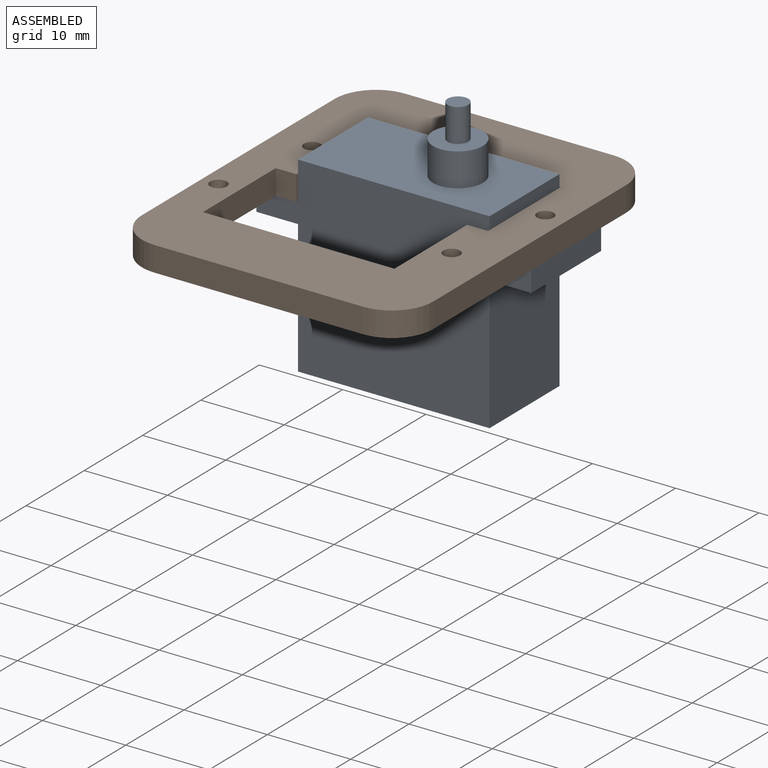
[diagram: assembled view]
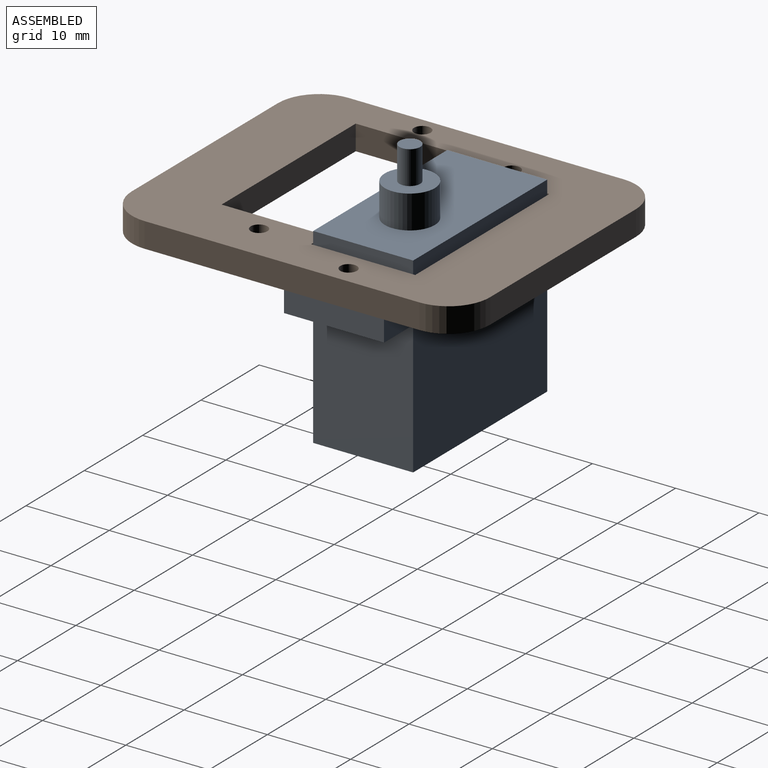
[diagram: assembled view, second angle]
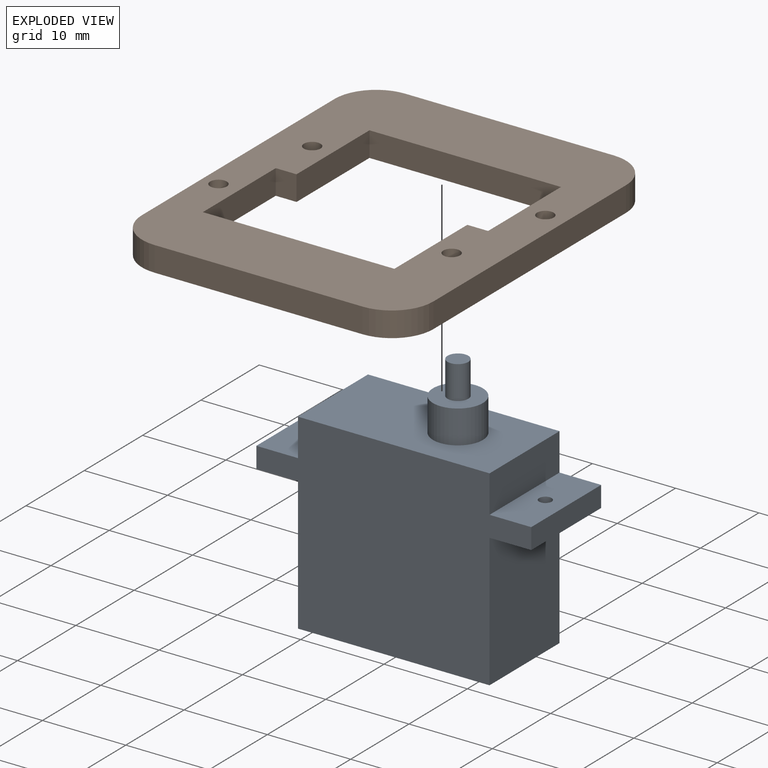
[diagram: exploded view]
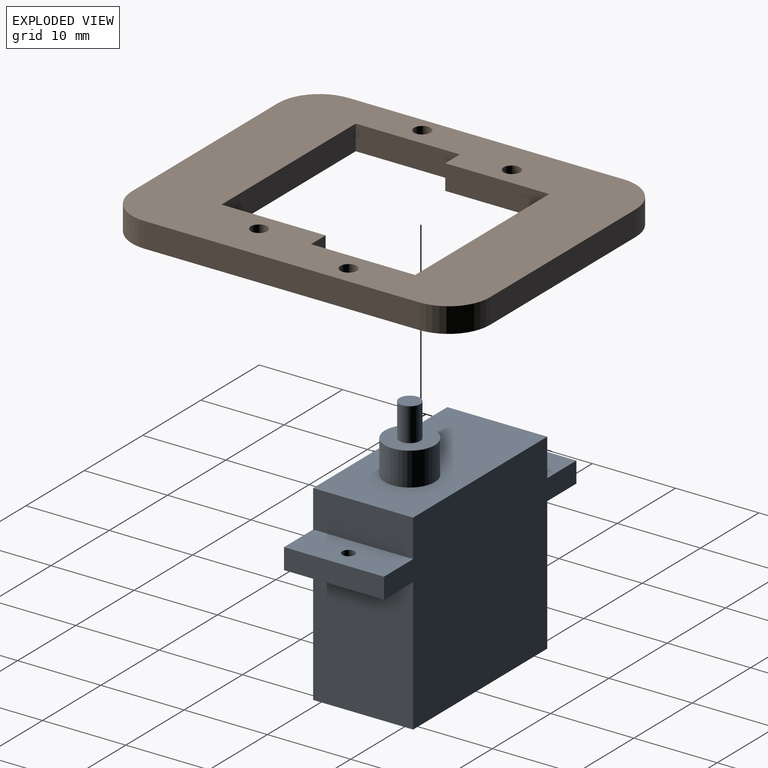
[diagram: exploded view, second angle]
ASSEMBLY  parts=2 mates=2
PART A: 20 faces, bbox 12x33x31 mm
  f0: plane 12x5mm, normal (0,0,-1), area 58.2mm2, adj f1,f3,f14,f15,f18
  f1: plane 33x23mm, normal (1,0,0), area 554mm2, adj f0,f2,f5,f6,f7,f8,f9,f15
  f2: plane 12x2.5mm, normal (0,1,0), area 30mm2, adj f1,f3,f5,f6
  f3: plane 33x23mm, normal (-1,0,0), area 554mm2, adj f0,f2,f5,f6,f7,f8,f9,f15
  f4: cylinder r=0.75mm len=2.5mm, axis (0,0,-1), area 11.8mm2, adj f5,f6
  f5: plane 12x5mm, normal (0,0,1), area 58.2mm2, adj f1,f2,f3,f4,f7
  f6: plane 12x5mm, normal (0,0,-1), area 58.2mm2, adj f1,f2,f3,f4,f17
  f7: plane 12x4.5mm, normal (0,1,0), area 54mm2, adj f1,f3,f5,f9
  f8: plane 12x4.5mm, normal (0,-1,0), area 54mm2, adj f1,f3,f9,f16
  f9: plane 23x12mm, normal (0,0,1), area 247.7mm2, adj f1,f3,f7,f8,f10
  f10: cylinder r=3mm len=6mm, axis (0,0,-1), area 75.4mm2, adj f9,f11
  f11: plane 6x6mm, normal (0,0,1), area 23.4mm2, adj f10,f12
  f12: cylinder r=1.25mm len=4mm, axis (0,0,-1), area 31.4mm2, adj f11,f13
  f13: plane 2.5x2.5mm, normal (0,0,1), area 4.9mm2, adj f12
  f14: cylinder r=0.75mm len=2.5mm, axis (0,0,-1), area 11.8mm2, adj f0,f16
  f15: plane 12x2.5mm, normal (0,-1,0), area 30mm2, adj f0,f1,f3,f16
  f16: plane 12x5mm, normal (0,0,1), area 58.2mm2, adj f1,f3,f8,f14,f15
  f17: plane 16x12mm, normal (0,1,0), area 192mm2, adj f1,f3,f6,f19
  f18: plane 16x12mm, normal (0,-1,0), area 192mm2, adj f0,f1,f3,f19
  f19: plane 23x12mm, normal (0,0,-1), area 276mm2, adj f1,f3,f17,f18
PART B: 22 faces, bbox 35x43x3 mm
  f0: plane 25x3mm, normal (0,-1,0), area 75mm2, adj f16,f17,f18,f21
  f1: plane 33x3mm, normal (1,0,0), area 99mm2, adj f16,f17,f18,f19
  f2: plane 25x3mm, normal (0,1,0), area 75mm2, adj f16,f17,f19,f20
  f3: plane 3x2.5mm, normal (0,1,0), area 7.5mm2, adj f4,f10,f16,f17
  f4: plane 12.5x3mm, normal (-1,0,0), area 37.5mm2, adj f3,f5,f16,f17
  f5: plane 23x3mm, normal (0,1,0), area 69mm2, adj f4,f6,f16,f17
  f6: plane 12.5x3mm, normal (1,0,0), area 37.5mm2, adj f5,f7,f16,f17
  f7: plane 3x2.5mm, normal (0,-1,0), area 7.5mm2, adj f6,f8,f16,f17
  f8: plane 12.5x3mm, normal (1,0,0), area 37.5mm2, adj f7,f9,f16,f17
  f9: plane 23x3mm, normal (0,-1,0), area 69mm2, adj f8,f10,f16,f17
  f10: plane 12.5x3mm, normal (-1,0,0), area 37.5mm2, adj f3,f9,f16,f17
  f11: cylinder r=1mm len=3mm, axis (0,0,-1), area 18.8mm2, adj f16,f17
  f12: cylinder r=1mm len=3mm, axis (0,0,-1), area 18.8mm2, adj f16,f17
  f13: cylinder r=1mm len=3mm, axis (0,0,-1), area 18.8mm2, adj f16,f17
  f14: cylinder r=1mm len=3mm, axis (0,0,-1), area 18.8mm2, adj f16,f17
  f15: plane 33x3mm, normal (-1,0,0), area 99mm2, adj f16,f17,f20,f21
  f16: plane 43x35mm, normal (0,0,1), area 896mm2, adj f0,f1,f2,f3,f4,f5,f6,f7
  f17: plane 43x35mm, normal (0,0,-1), area 896mm2, adj f0,f1,f2,f3,f4,f5,f6,f7
  f18: cylinder r=5mm len=5mm, axis (0,0,1), area 23.6mm2, adj f0,f1,f16,f17
  f19: cylinder r=5mm len=5mm, axis (0,0,-1), area 23.6mm2, adj f1,f2,f16,f17
  f20: cylinder r=5mm len=5mm, axis (0,0,1), area 23.6mm2, adj f2,f15,f16,f17
  f21: cylinder r=5mm len=5mm, axis (0,0,-1), area 23.6mm2, adj f0,f15,f16,f17
PLACE A rot(axis=(0,0,-1),90deg) t=(4.5,6.25,-2.5)mm
PLACE B at identity
MATE revolute A.f4 <-> B.f11  axis (0,0,1) through (15,6.25,0)mm
MATE revolute A.f14 <-> B.f12  axis (0,0,1) through (-13,6.25,0)mm
